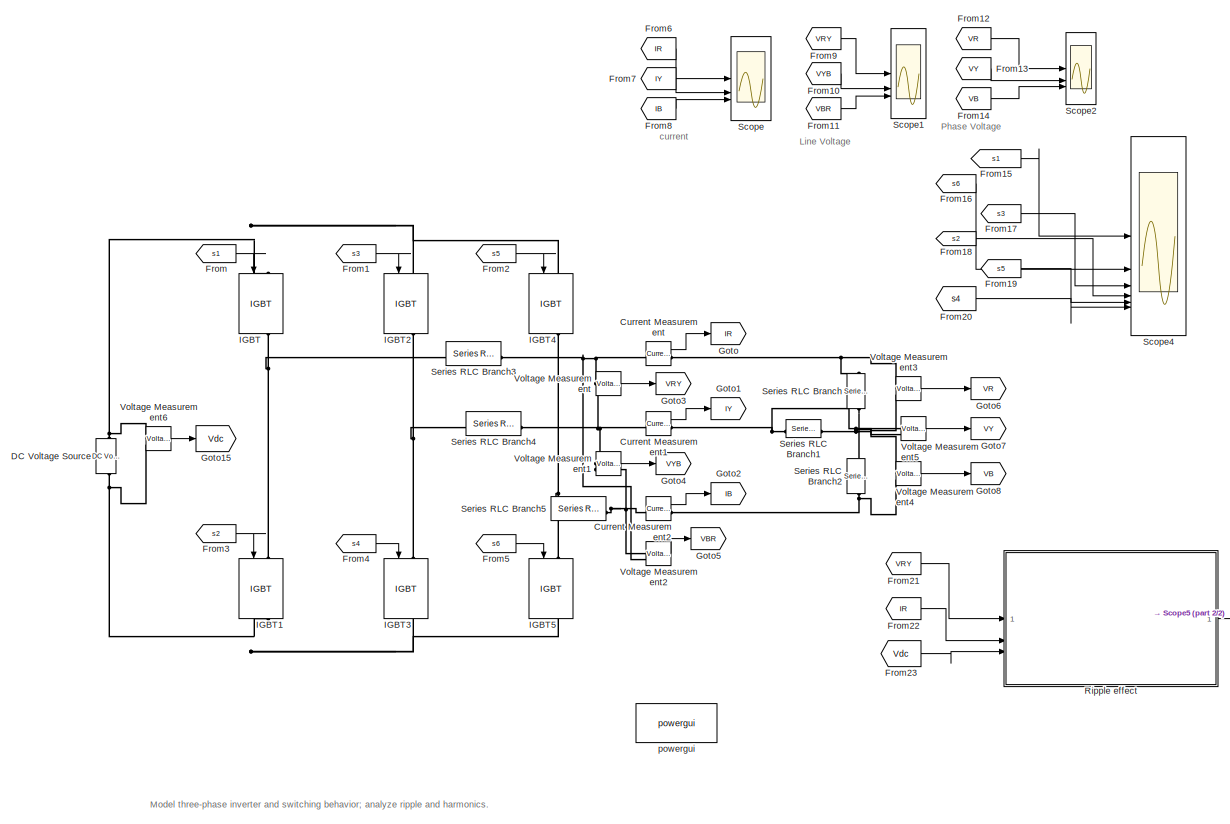
[diagram: root canvas - part 1/2, center side, full height]
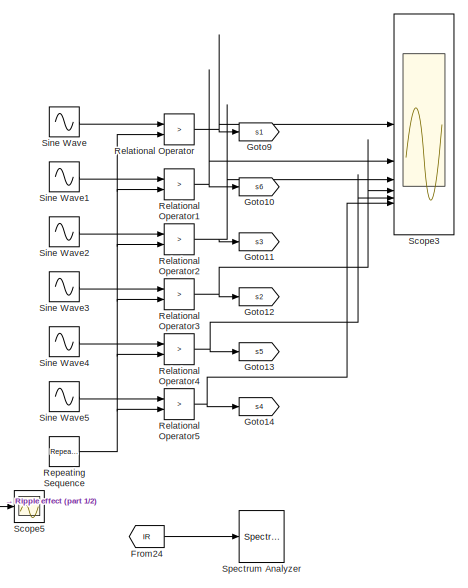
[diagram: root canvas - part 2/2, middle right region]
MODEL slx_ade389a9eb6f
KIND model
CONFIG AbsTol = auto
CONFIG EnableMultiTasking = off
CONFIG FixedStep = auto
CONFIG MaxStep = auto
CONFIG MinStep = auto
CONFIG RelTol = 1e-3
CONFIG SampleTimeConstraint = Unconstrained
CONFIG SolverName = VariableStepDiscrete
CONFIG StartTime = 0.0
CONFIG StopTime = 1
BLOCK [Reference] Current Measurement  REF=spsCurrentMeasurementLib/Current Measurement
  LibrarySourceBlock = sps_lib/Sensors and Measurements/Current Measurement
  SourceBlock = spsCurrentMeasurementLib/Current Measurement
  SourceType = Current Measurement
  UserDataPersistent = on
BLOCK [Reference] Current Measurement1  REF=spsCurrentMeasurementLib/Current Measurement
  LibrarySourceBlock = sps_lib/Sensors and Measurements/Current Measurement
  SourceBlock = spsCurrentMeasurementLib/Current Measurement
  SourceType = Current Measurement
  UserDataPersistent = on
BLOCK [Reference] Current Measurement2  REF=spsCurrentMeasurementLib/Current Measurement
  LibrarySourceBlock = sps_lib/Sensors and Measurements/Current Measurement
  SourceBlock = spsCurrentMeasurementLib/Current Measurement
  SourceType = Current Measurement
  UserDataPersistent = on
BLOCK [Reference] DC Voltage Source  REF=spsDCVoltageSourceLib/DC Voltage Source
  LibrarySourceBlock = sps_lib/Sources/DC Voltage Source
  SourceBlock = spsDCVoltageSourceLib/DC Voltage Source
  SourceType = DC Voltage Source
BLOCK [From] From
  GotoTag = s1
BLOCK [From] From1
  GotoTag = s3
BLOCK [From] From10
  GotoTag = VYB
BLOCK [From] From11
  GotoTag = VBR
BLOCK [From] From12
  GotoTag = VR
BLOCK [From] From13
  GotoTag = VY
BLOCK [From] From14
  GotoTag = VB
BLOCK [From] From15
  GotoTag = s1
BLOCK [From] From16
  GotoTag = s6
BLOCK [From] From17
  GotoTag = s3
BLOCK [From] From18
  GotoTag = s2
BLOCK [From] From19
  GotoTag = s5
BLOCK [From] From2
  GotoTag = s5
BLOCK [From] From20
  GotoTag = s4
BLOCK [From] From21
  GotoTag = VRY
BLOCK [From] From22
  GotoTag = IR
BLOCK [From] From23
  GotoTag = Vdc
BLOCK [From] From24
  GotoTag = IR
BLOCK [From] From3
  GotoTag = s2
BLOCK [From] From4
  GotoTag = s4
BLOCK [From] From5
  GotoTag = s6
BLOCK [From] From6
  GotoTag = IR
BLOCK [From] From7
  GotoTag = IY
BLOCK [From] From8
  GotoTag = IB
BLOCK [From] From9
  GotoTag = VRY
BLOCK [Goto] Goto
  GotoTag = IR
BLOCK [Goto] Goto1
  GotoTag = IY
BLOCK [Goto] Goto10
  GotoTag = s6
BLOCK [Goto] Goto11
  GotoTag = s3
BLOCK [Goto] Goto12
  GotoTag = s2
BLOCK [Goto] Goto13
  GotoTag = s5
BLOCK [Goto] Goto14
  GotoTag = s4
BLOCK [Goto] Goto15
  GotoTag = Vdc
BLOCK [Goto] Goto2
  GotoTag = IB
BLOCK [Goto] Goto3
  GotoTag = VRY
BLOCK [Goto] Goto4
  GotoTag = VYB
BLOCK [Goto] Goto5
  GotoTag = VBR
BLOCK [Goto] Goto6
  GotoTag = VR
BLOCK [Goto] Goto7
  GotoTag = VY
BLOCK [Goto] Goto8
  GotoTag = VB
BLOCK [Goto] Goto9
  GotoTag = s1
BLOCK [Reference] IGBT  REF=spsIGBTLib/IGBT
  LibrarySourceBlock = sps_lib/Power Electronics/IGBT
  NameLocation = left
  SourceBlock = spsIGBTLib/IGBT
  SourceType = IGBT
BLOCK [Reference] IGBT1  REF=spsIGBTLib/IGBT
  LibrarySourceBlock = sps_lib/Power Electronics/IGBT
  NameLocation = left
  SourceBlock = spsIGBTLib/IGBT
  SourceType = IGBT
BLOCK [Reference] IGBT2  REF=spsIGBTLib/IGBT
  LibrarySourceBlock = sps_lib/Power Electronics/IGBT
  NameLocation = left
  SourceBlock = spsIGBTLib/IGBT
  SourceType = IGBT
BLOCK [Reference] IGBT3  REF=spsIGBTLib/IGBT
  LibrarySourceBlock = sps_lib/Power Electronics/IGBT
  NameLocation = left
  SourceBlock = spsIGBTLib/IGBT
  SourceType = IGBT
BLOCK [Reference] IGBT4  REF=spsIGBTLib/IGBT
  LibrarySourceBlock = sps_lib/Power Electronics/IGBT
  NameLocation = left
  SourceBlock = spsIGBTLib/IGBT
  SourceType = IGBT
BLOCK [Reference] IGBT5  REF=spsIGBTLib/IGBT
  LibrarySourceBlock = sps_lib/Power Electronics/IGBT
  NameLocation = left
  SourceBlock = spsIGBTLib/IGBT
  SourceType = IGBT
BLOCK [RelationalOperator] Relational Operator
  InputSameDT = off
  Operator = >
  OutDataTypeStr = boolean
  RndMeth = Simplest
BLOCK [RelationalOperator] Relational Operator1
  InputSameDT = off
  Operator = >
  OutDataTypeStr = boolean
  RndMeth = Simplest
BLOCK [RelationalOperator] Relational Operator2
  InputSameDT = off
  Operator = >
  OutDataTypeStr = boolean
  RndMeth = Simplest
BLOCK [RelationalOperator] Relational Operator3
  InputSameDT = off
  Operator = >
  OutDataTypeStr = boolean
  RndMeth = Simplest
BLOCK [RelationalOperator] Relational Operator4
  InputSameDT = off
  Operator = >
  OutDataTypeStr = boolean
  RndMeth = Simplest
BLOCK [RelationalOperator] Relational Operator5
  InputSameDT = off
  Operator = >
  OutDataTypeStr = boolean
  RndMeth = Simplest
BLOCK [Reference] Repeating Sequence  REF=simulink/Sources/Repeating
Sequence
  SourceBlock = simulink/Sources/Repeating\nSequence
  SourceType = Repeating table
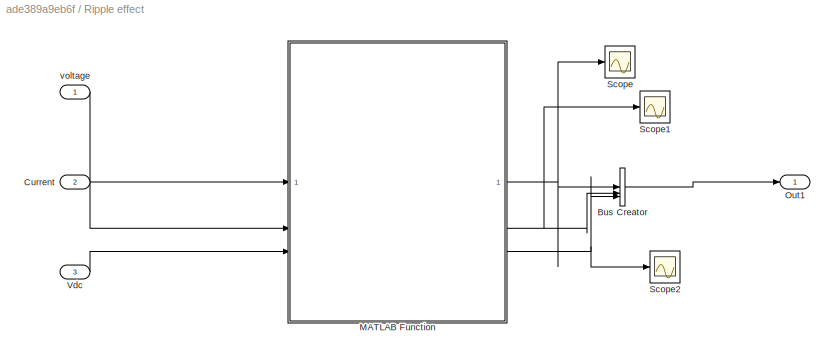
BLOCK [SubSystem] Ripple effect
BLOCK [BusCreator] Ripple effect/Bus Creator
  DisplayOption = bar
  InheritFromInputs = on
  Inputs = 3
BLOCK [Inport] Ripple effect/Current
  Port = 2
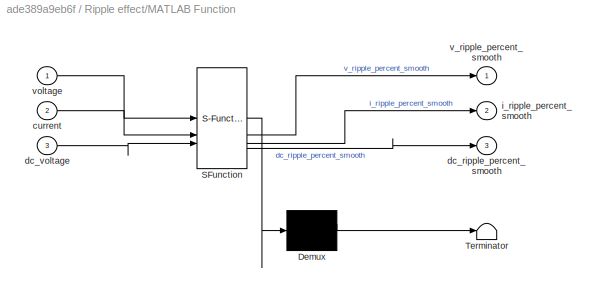
BLOCK [SubSystem] Ripple effect/MATLAB Function
  ErrorFcn = Stateflow.Translate.translate
  PermitHierarchicalResolution = ExplicitOnly
  SFBlockType = MATLAB Function
  TreatAsAtomicUnit = on
BLOCK [Demux] Ripple effect/MATLAB Function/ Demux 
  Outputs = 1
BLOCK [S-Function] Ripple effect/MATLAB Function/ SFunction 
  EnableBusSupport = on
  FunctionName = sf_sfun
  PortCounts = [3 4]
  SFcnIsStateOwnerBlock = off
  SFunctionDeploymentMode = off
  Tag = Stateflow S-Function 2
BLOCK [Terminator] Ripple effect/MATLAB Function/ Terminator 
BLOCK [Inport] Ripple effect/MATLAB Function/current
  Port = 2
BLOCK [Outport] Ripple effect/MATLAB Function/dc_ripple_percent_smooth
  Port = 3
BLOCK [Inport] Ripple effect/MATLAB Function/dc_voltage
  Port = 3
BLOCK [Outport] Ripple effect/MATLAB Function/i_ripple_percent_smooth
  Port = 2
BLOCK [Outport] Ripple effect/MATLAB Function/v_ripple_percent_smooth
BLOCK [Inport] Ripple effect/MATLAB Function/voltage
BLOCK [Outport] Ripple effect/Out1
BLOCK [Scope] Ripple effect/Scope
  Floating = off
  NumInputPorts = 1
  ScopeSpecificationString = Simulink.scopes.TimeScopeBlockCfg('CurrentConfiguration', extmgr.ConfigurationSet(extmgr.Configuration('Core','General UI',true),extmgr.Configuration('Core','Source UI',true),extmgr.Configuration('Sources','WiredSimulink',true,'DataLoggingVariableName','ScopeData2'),extmgr.Configuration('Visuals','Time Domain',true,'SerializedDisplays',{struct('MinYLimReal','-6.25','MaxYLimReal','56.25','YLabelRea...<+1436ch>
BLOCK [Scope] Ripple effect/Scope1
  Floating = off
  NumInputPorts = 1
  ScopeSpecificationString = Simulink.scopes.TimeScopeBlockCfg('CurrentConfiguration', extmgr.ConfigurationSet(extmgr.Configuration('Core','General UI',true),extmgr.Configuration('Core','Source UI',true),extmgr.Configuration('Sources','WiredSimulink',true,'DataLoggingVariableName','ScopeData3'),extmgr.Configuration('Visuals','Time Domain',true,'SerializedDisplays',{struct('MinYLimReal','-12.5','MaxYLimReal','112.5','YLabelRea...<+1384ch>
BLOCK [Scope] Ripple effect/Scope2
  Floating = off
  NumInputPorts = 1
  ScopeSpecificationString = Simulink.scopes.TimeScopeBlockCfg('CurrentConfiguration', extmgr.ConfigurationSet(extmgr.Configuration('Core','General UI',true),extmgr.Configuration('Core','Source UI',true),extmgr.Configuration('Sources','WiredSimulink',true,'DataLoggingVariableName','ScopeData4'),extmgr.Configuration('Visuals','Time Domain',true,'SerializedDisplays',{struct('MinYLimReal','-1250.00000','MaxYLimReal','11250.00000...<+1496ch>
BLOCK [Inport] Ripple effect/Vdc
  Port = 3
BLOCK [Inport] Ripple effect/voltage
BLOCK [Scope] Scope
  Floating = off
  NumInputPorts = 3
  ScopeSpecificationString = Simulink.scopes.TimeScopeBlockCfg('CurrentConfiguration', extmgr.ConfigurationSet(extmgr.Configuration('Core','General UI',true),extmgr.Configuration('Core','Source UI',true),extmgr.Configuration('Sources','WiredSimulink',true,'DataLogging',true,'DataLoggingVariableName','current','DataLoggingSaveFormat','StructureWithTime'),extmgr.Configuration('Visuals','Time Domain',true,'SerializedDisplays',{s...<+2816ch>
BLOCK [Scope] Scope1
  Floating = off
  NumInputPorts = 3
  ScopeSpecificationString = Simulink.scopes.TimeScopeBlockCfg('CurrentConfiguration', extmgr.ConfigurationSet(extmgr.Configuration('Core','General UI',true),extmgr.Configuration('Core','Source UI',true),extmgr.Configuration('Sources','WiredSimulink',true,'DataLoggingVariableName','Line_Voltage','DataLogging',true,'DataLoggingSaveFormat','StructureWithTime'),extmgr.Configuration('Visuals','Time Domain',true,'SerializedDisplay...<+2825ch>
BLOCK [Scope] Scope2
  Floating = off
  NumInputPorts = 3
  ScopeSpecificationString = Simulink.scopes.TimeScopeBlockCfg('CurrentConfiguration', extmgr.ConfigurationSet(extmgr.Configuration('Core','General UI',true),extmgr.Configuration('Core','Source UI',true),extmgr.Configuration('Sources','WiredSimulink',true,'DataLoggingVariableName','Phase_Voltage','DataLogging',true,'DataLoggingSaveFormat','StructureWithTime'),extmgr.Configuration('Visuals','Time Domain',true,'SerializedDispla...<+2857ch>
BLOCK [Scope] Scope3
  Floating = off
  NumInputPorts = 6
  ScopeSpecificationString = Simulink.scopes.TimeScopeBlockCfg('CurrentConfiguration', extmgr.ConfigurationSet(extmgr.Configuration('Core','General UI',true),extmgr.Configuration('Core','Source UI',true),extmgr.Configuration('Sources','WiredSimulink',true,'DataLoggingVariableName','ScopeData3'),extmgr.Configuration('Visuals','Time Domain',true,'SerializedDisplays',{struct('MinYLimReal','-0.125','MaxYLimReal','1.125','YLabelRe...<+4977ch>
BLOCK [Scope] Scope4
  Floating = off
  NumInputPorts = 6
  ScopeSpecificationString = Simulink.scopes.TimeScopeBlockCfg('CurrentConfiguration', extmgr.ConfigurationSet(extmgr.Configuration('Core','General UI',true),extmgr.Configuration('Core','Source UI',true),extmgr.Configuration('Sources','WiredSimulink',true,'DataLoggingVariableName','ScopeData4'),extmgr.Configuration('Visuals','Time Domain',true,'SerializedDisplays',{struct('MinYLimReal','-0.125','MaxYLimReal','1.125','YLabelRe...<+4904ch>
BLOCK [Scope] Scope5
  Floating = off
  NumInputPorts = 1
  ScopeSpecificationString = Simulink.scopes.TimeScopeBlockCfg('CurrentConfiguration', extmgr.ConfigurationSet(extmgr.Configuration('Core','General UI',true),extmgr.Configuration('Core','Source UI',true),extmgr.Configuration('Sources','WiredSimulink',true,'DataLoggingVariableName','ScopeData1'),extmgr.Configuration('Visuals','Time Domain',true,'SerializedDisplays',{struct('MinYLimReal','-12.5','MaxYLimReal','112.5','YLabelRea...<+1584ch>
BLOCK [Reference] Series RLC Branch  REF=spsSeriesRLCBranchLib/Series RLC Branch
  LibrarySourceBlock = sps_lib/Passives/Series RLC Branch
  NameLocation = left
  SourceBlock = spsSeriesRLCBranchLib/Series RLC Branch
  SourceType = Series RLC Branch
BLOCK [Reference] Series RLC Branch1  REF=spsSeriesRLCBranchLib/Series RLC Branch
  LibrarySourceBlock = sps_lib/Passives/Series RLC Branch
  SourceBlock = spsSeriesRLCBranchLib/Series RLC Branch
  SourceType = Series RLC Branch
BLOCK [Reference] Series RLC Branch2  REF=spsSeriesRLCBranchLib/Series RLC Branch
  LibrarySourceBlock = sps_lib/Passives/Series RLC Branch
  NameLocation = left
  SourceBlock = spsSeriesRLCBranchLib/Series RLC Branch
  SourceType = Series RLC Branch
BLOCK [Reference] Series RLC Branch3  REF=spsSeriesRLCBranchLib/Series RLC Branch
  LibrarySourceBlock = sps_lib/Passives/Series RLC Branch
  SourceBlock = spsSeriesRLCBranchLib/Series RLC Branch
  SourceType = Series RLC Branch
BLOCK [Reference] Series RLC Branch4  REF=spsSeriesRLCBranchLib/Series RLC Branch
  LibrarySourceBlock = sps_lib/Passives/Series RLC Branch
  SourceBlock = spsSeriesRLCBranchLib/Series RLC Branch
  SourceType = Series RLC Branch
BLOCK [Reference] Series RLC Branch5  REF=spsSeriesRLCBranchLib/Series RLC Branch
  LibrarySourceBlock = sps_lib/Passives/Series RLC Branch
  SourceBlock = spsSeriesRLCBranchLib/Series RLC Branch
  SourceType = Series RLC Branch
BLOCK [Sin] Sine Wave
  Frequency = 2*pi*50
  SampleTime = 0
BLOCK [Sin] Sine Wave1
  Frequency = 2*pi*50
  Phase = 60*(pi/180)
  SampleTime = 0
BLOCK [Sin] Sine Wave2
  Frequency = 2*pi*50
  Phase = 120*(pi/180)
  SampleTime = 0
BLOCK [Sin] Sine Wave3
  Frequency = 2*pi*50
  Phase = 180*(pi/180)
  SampleTime = 0
BLOCK [Sin] Sine Wave4
  Frequency = 2*pi*50
  Phase = 240*(pi/180)
  SampleTime = 0
BLOCK [Sin] Sine Wave5
  Frequency = 2*pi*50
  Phase = 300*(pi/180)
  SampleTime = 0
BLOCK [SpectrumAnalyzer] Spectrum Analyzer
  AveragingMethod = Exponential
  GraphicalSettings = {"GraphicalSettings":{"Style":{"BackgroundColor":[0.12941176470588237,0.12941176470588237,0.12941176470588237],"AxesColor":[0.07058823529411765,0.07058823529411765,0.07058823529411765],"LabelsColor":[0.8509803921568627,0.8509803921568627,0.8509803921568627],"PreserveColors":false,"Visible":[true],"LineStyle":["-"],"LineColor":[[1,1,0.06666666666666667]],"LineWidth":[1.5],"Marker":["none"],"FontSiz...<+445ch>
  Method = Welch
  PlotAsTwoSidedSpectrum = off
  ScopeFrameLocation = window
  SelectedToolstripTab = spectrumAnalyzerToolstrip.spectrumTab
  WasSavedAsWebScope = on
  WindowPosition = [283.000000,134.000000,800.000000,500.000000,]
  YLimits = [-64.30571468,9.30366777]
BLOCK [Reference] Voltage Measurement  REF=spsVoltageMeasurementLib/Voltage Measurement
  LibrarySourceBlock = sps_lib/Sensors and Measurements/Voltage Measurement
  SourceBlock = spsVoltageMeasurementLib/Voltage Measurement
  SourceType = Voltage Measurement
  UserDataPersistent = on
BLOCK [Reference] Voltage Measurement1  REF=spsVoltageMeasurementLib/Voltage Measurement
  LibrarySourceBlock = sps_lib/Sensors and Measurements/Voltage Measurement
  SourceBlock = spsVoltageMeasurementLib/Voltage Measurement
  SourceType = Voltage Measurement
  UserDataPersistent = on
BLOCK [Reference] Voltage Measurement2  REF=spsVoltageMeasurementLib/Voltage Measurement
  LibrarySourceBlock = sps_lib/Sensors and Measurements/Voltage Measurement
  SourceBlock = spsVoltageMeasurementLib/Voltage Measurement
  SourceType = Voltage Measurement
  UserDataPersistent = on
BLOCK [Reference] Voltage Measurement3  REF=spsVoltageMeasurementLib/Voltage Measurement
  LibrarySourceBlock = sps_lib/Sensors and Measurements/Voltage Measurement
  SourceBlock = spsVoltageMeasurementLib/Voltage Measurement
  SourceType = Voltage Measurement
  UserDataPersistent = on
BLOCK [Reference] Voltage Measurement4  REF=spsVoltageMeasurementLib/Voltage Measurement
  LibrarySourceBlock = sps_lib/Sensors and Measurements/Voltage Measurement
  SourceBlock = spsVoltageMeasurementLib/Voltage Measurement
  SourceType = Voltage Measurement
  UserDataPersistent = on
BLOCK [Reference] Voltage Measurement5  REF=spsVoltageMeasurementLib/Voltage Measurement
  LibrarySourceBlock = sps_lib/Sensors and Measurements/Voltage Measurement
  SourceBlock = spsVoltageMeasurementLib/Voltage Measurement
  SourceType = Voltage Measurement
  UserDataPersistent = on
BLOCK [Reference] Voltage Measurement6  REF=spsVoltageMeasurementLib/Voltage Measurement
  LibrarySourceBlock = sps_lib/Sensors and Measurements/Voltage Measurement
  SourceBlock = spsVoltageMeasurementLib/Voltage Measurement
  SourceType = Voltage Measurement
  UserDataPersistent = on
BLOCK [Reference] powergui  REF=sps_lib/powergui
  LibrarySourceBlock = sps_lib/powergui
  Priority = 1
  SourceBlock = sps_lib/powergui
  SourceType = PSB option menu block
ANNOTATION (root): Model three-phase inverter and switching behavior; analyze ripple and harmonics.
ANNOTATION (root): Line Voltage
ANNOTATION (root): current
ANNOTATION (root): Phase Voltage
LINE Current Measurement1:1 -> Goto1:1
LINE Current Measurement2:1 -> Goto2:1
LINE Current Measurement:1 -> Goto:1
LINE From10:1 -> Scope1:2
LINE From11:1 -> Scope1:3
LINE From12:1 -> Scope2:1
LINE From13:1 -> Scope2:2
LINE From14:1 -> Scope2:3
LINE From15:1 -> Scope4:1
LINE From16:1 -> Scope4:2
LINE From17:1 -> Scope4:3
LINE From18:1 -> Scope4:4
LINE From19:1 -> Scope4:5
LINE From1:1 -> IGBT2:1
LINE From20:1 -> Scope4:6
LINE From21:1 -> Ripple effect:1
LINE From22:1 -> Ripple effect:2
LINE From23:1 -> Ripple effect:3
LINE From24:1 -> Spectrum Analyzer:1
LINE From2:1 -> IGBT4:1
LINE From3:1 -> IGBT1:1
LINE From4:1 -> IGBT3:1
LINE From5:1 -> IGBT5:1
LINE From6:1 -> Scope:1
LINE From7:1 -> Scope:2
LINE From8:1 -> Scope:3
LINE From9:1 -> Scope1:1
LINE From:1 -> IGBT:1
NET Relational Operator1:1 -> Goto10:1, Scope3:2
NET Relational Operator2:1 -> Goto11:1, Scope3:3
NET Relational Operator3:1 -> Goto12:1, Scope3:4
NET Relational Operator4:1 -> Goto13:1, Scope3:5
NET Relational Operator5:1 -> Goto14:1, Scope3:6
NET Relational Operator:1 -> Goto9:1, Scope3:1
NET Repeating Sequence:1 -> Relational Operator1:2, Relational Operator2:2, Relational Operator3:2, Relational Operator4:2, Relational Operator5:2, Relational Operator:2
LINE Ripple effect/Bus Creator:1 -> Ripple effect/Out1:1
LINE Ripple effect/Current:1 -> Ripple effect/MATLAB Function:2
NET Ripple effect/MATLAB Function:1 -> Ripple effect/Bus Creator:1, Ripple effect/Scope:1
NET Ripple effect/MATLAB Function:2 -> Ripple effect/Bus Creator:2, Ripple effect/Scope1:1
NET Ripple effect/MATLAB Function:3 -> Ripple effect/Bus Creator:3, Ripple effect/Scope2:1
LINE Ripple effect/Vdc:1 -> Ripple effect/MATLAB Function:3
LINE Ripple effect/voltage:1 -> Ripple effect/MATLAB Function:1
LINE Ripple effect:1 -> Scope5:1
LINE Sine Wave1:1 -> Relational Operator1:1
LINE Sine Wave2:1 -> Relational Operator2:1
LINE Sine Wave3:1 -> Relational Operator3:1
LINE Sine Wave4:1 -> Relational Operator4:1
LINE Sine Wave5:1 -> Relational Operator5:1
LINE Sine Wave:1 -> Relational Operator:1
LINE Voltage Measurement1:1 -> Goto4:1
LINE Voltage Measurement2:1 -> Goto5:1
LINE Voltage Measurement3:1 -> Goto6:1
LINE Voltage Measurement4:1 -> Goto8:1
LINE Voltage Measurement5:1 -> Goto7:1
LINE Voltage Measurement6:1 -> Goto15:1
LINE Voltage Measurement:1 -> Goto3:1
PNET net1: Current Measurement1:LConn1 -- Series RLC Branch4:RConn1 -- Voltage Measurement1:LConn1 -- Voltage Measurement:LConn2
PNET net2: Current Measurement1:RConn1 -- Series RLC Branch1:LConn1 -- Voltage Measurement5:LConn1
PNET net3: Current Measurement2:LConn1 -- Series RLC Branch5:RConn1 -- Voltage Measurement1:LConn2 -- Voltage Measurement2:LConn1
PNET net4: Current Measurement2:RConn1 -- Series RLC Branch2:RConn1 -- Voltage Measurement4:LConn2
PNET net5: Current Measurement:LConn1 -- Series RLC Branch3:RConn1 -- Voltage Measurement2:LConn2 -- Voltage Measurement:LConn1
PNET net6: Current Measurement:RConn1 -- Series RLC Branch:LConn1 -- Voltage Measurement3:LConn1
PNET net7: DC Voltage Source:LConn1 -- IGBT1:RConn1 -- IGBT3:RConn1 -- IGBT5:RConn1 -- Voltage Measurement6:LConn2
PNET net8: DC Voltage Source:RConn1 -- IGBT2:LConn1 -- IGBT4:LConn1 -- IGBT:LConn1 -- Voltage Measurement6:LConn1
PNET net9: IGBT1:LConn1 -- IGBT:RConn1 -- Series RLC Branch3:LConn1
PNET net10: IGBT2:RConn1 -- IGBT3:LConn1 -- Series RLC Branch4:LConn1
PNET net11: IGBT4:RConn1 -- IGBT5:LConn1 -- Series RLC Branch5:LConn1
PNET net12: Series RLC Branch1:RConn1 -- Series RLC Branch2:LConn1 -- Series RLC Branch:RConn1 -- Voltage Measurement3:LConn2 -- Voltage Measurement4:LConn1 -- Voltage Measurement5:LConn2
note: NET lines group one-source signal fan-out (src -> all destinations, sorted); 1:1 wires keep LINE; PNET lines group multi-terminal physical nets as a canonical sorted terminal list (undirected conserving connections); 2-terminal nets keep the pairwise PLINE form
CHART Ripple effect/MATLAB Function states=1 transitions=1
  STATE_LABEL 'eML_blk_kernel()'
  STATE_LABEL 'SCRIPT:\nfunction [v_ripple_percent_smooth, i_ripple_percent_smooth, dc_ripple_percent_smooth] = improved_ripple_calc(voltage, current, dc_voltage)\n%#codegen\n\n% Improved ripple calculation with smoothing and better filtering\n\npersistent v_buffer i_buffer dc_buffer buffer_idx N;\npersistent v_ripple_history i_ripple_history dc_ripple_history;\npersistent history_idx history_size initialized;\n\n% Initia...<+3608ch>'
CHART  states=0 transitions=0
